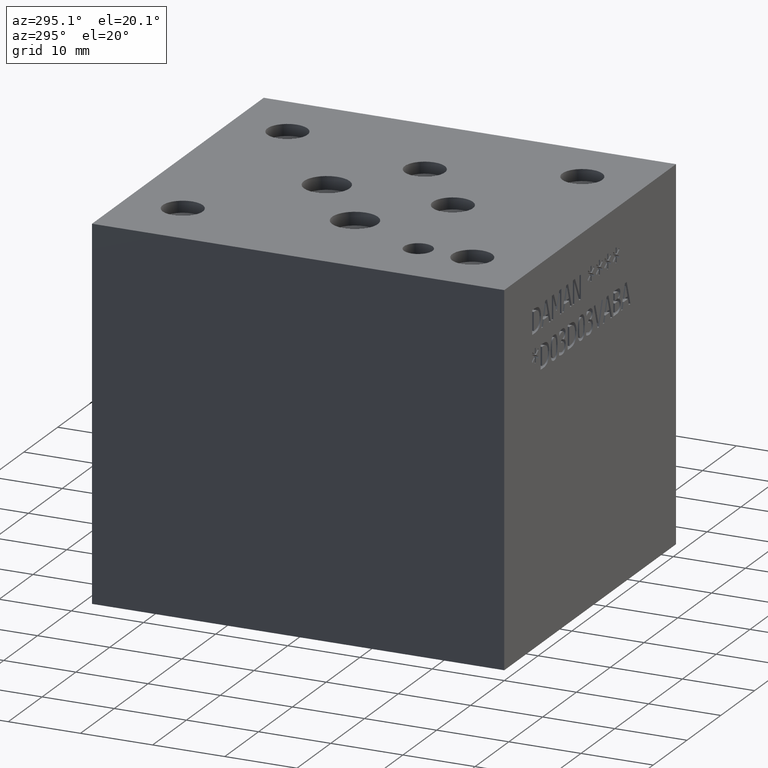
[diagram: clean part render]
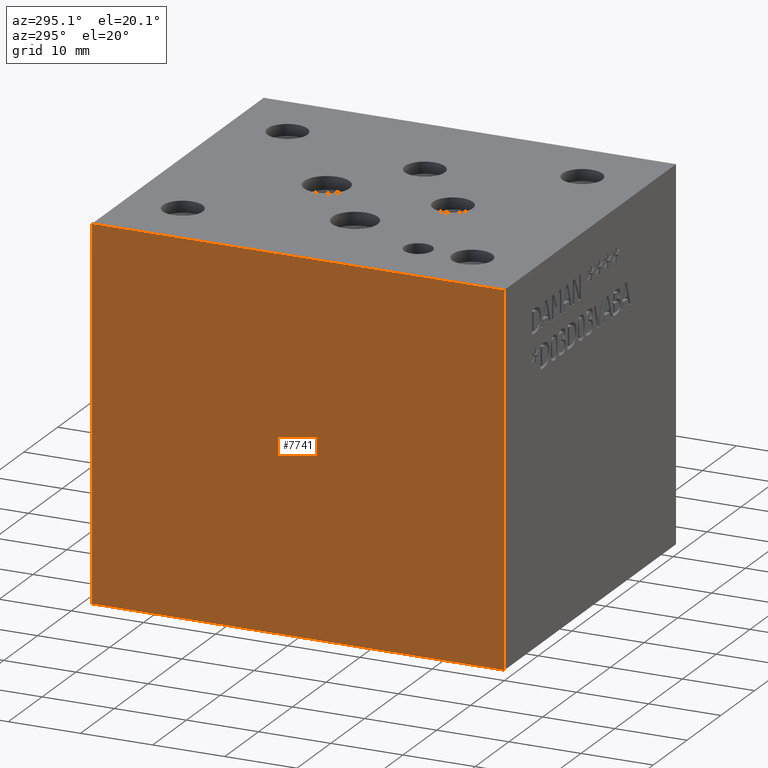
[diagram: same view with one face highlighted and labeled with its STEP entity id]
A machine part, auxiliary view. The second image highlights one B-rep face of the part: STEP entity #7741.
In plain terms, the highlighted planar face has unit normal (-1, 0, 0).
Its self-contained STEP definition (entity closure, byte-faithful):
#874=FACE_OUTER_BOUND('',#1298,.T.);
#1298=EDGE_LOOP('',(#6721,#6722,#6723,#6724));
#1672=LINE('',#11936,#2448);
#2090=LINE('',#13118,#2866);
#2091=LINE('',#13120,#2867);
#2092=LINE('',#13121,#2868);
#2448=VECTOR('',#8680,10.);
#2866=VECTOR('',#9640,10.);
#2867=VECTOR('',#9641,10.);
#2868=VECTOR('',#9642,10.);
#3228=VERTEX_POINT('',#11929);
#3231=VERTEX_POINT('',#11934);
#3596=VERTEX_POINT('',#13117);
#3597=VERTEX_POINT('',#13119);
#4134=EDGE_CURVE('',#3228,#3231,#1672,.T.);
#4652=EDGE_CURVE('',#3596,#3228,#2090,.T.);
#4653=EDGE_CURVE('',#3597,#3231,#2091,.T.);
#4654=EDGE_CURVE('',#3596,#3597,#2092,.T.);
#6721=ORIENTED_EDGE('',*,*,#4652,.T.);
#6722=ORIENTED_EDGE('',*,*,#4134,.T.);
#6723=ORIENTED_EDGE('',*,*,#4653,.F.);
#6724=ORIENTED_EDGE('',*,*,#4654,.F.);
#7023=PLANE('',#8128);
#7741=ADVANCED_FACE('',(#874),#7023,.T.);
#8128=AXIS2_PLACEMENT_3D('',#13116,#9638,#9639);
#8680=DIRECTION('',(0.,0.,1.));
#9638=DIRECTION('center_axis',(-1.,0.,0.));
#9639=DIRECTION('ref_axis',(0.,-1.,0.));
#9640=DIRECTION('',(0.,-1.,0.));
#9641=DIRECTION('',(0.,-1.,0.));
#9642=DIRECTION('',(0.,0.,1.));
#11929=CARTESIAN_POINT('',(0.,0.,0.));
#11934=CARTESIAN_POINT('',(0.,0.,50.8));
#11936=CARTESIAN_POINT('',(0.,0.,0.));
#13116=CARTESIAN_POINT('Origin',(0.,57.1373,0.));
#13117=CARTESIAN_POINT('',(0.,57.1373,0.));
#13118=CARTESIAN_POINT('',(0.,57.1373,0.));
#13119=CARTESIAN_POINT('',(0.,57.1373,50.8));
#13120=CARTESIAN_POINT('',(0.,57.1373,50.8));
#13121=CARTESIAN_POINT('',(0.,57.1373,0.));